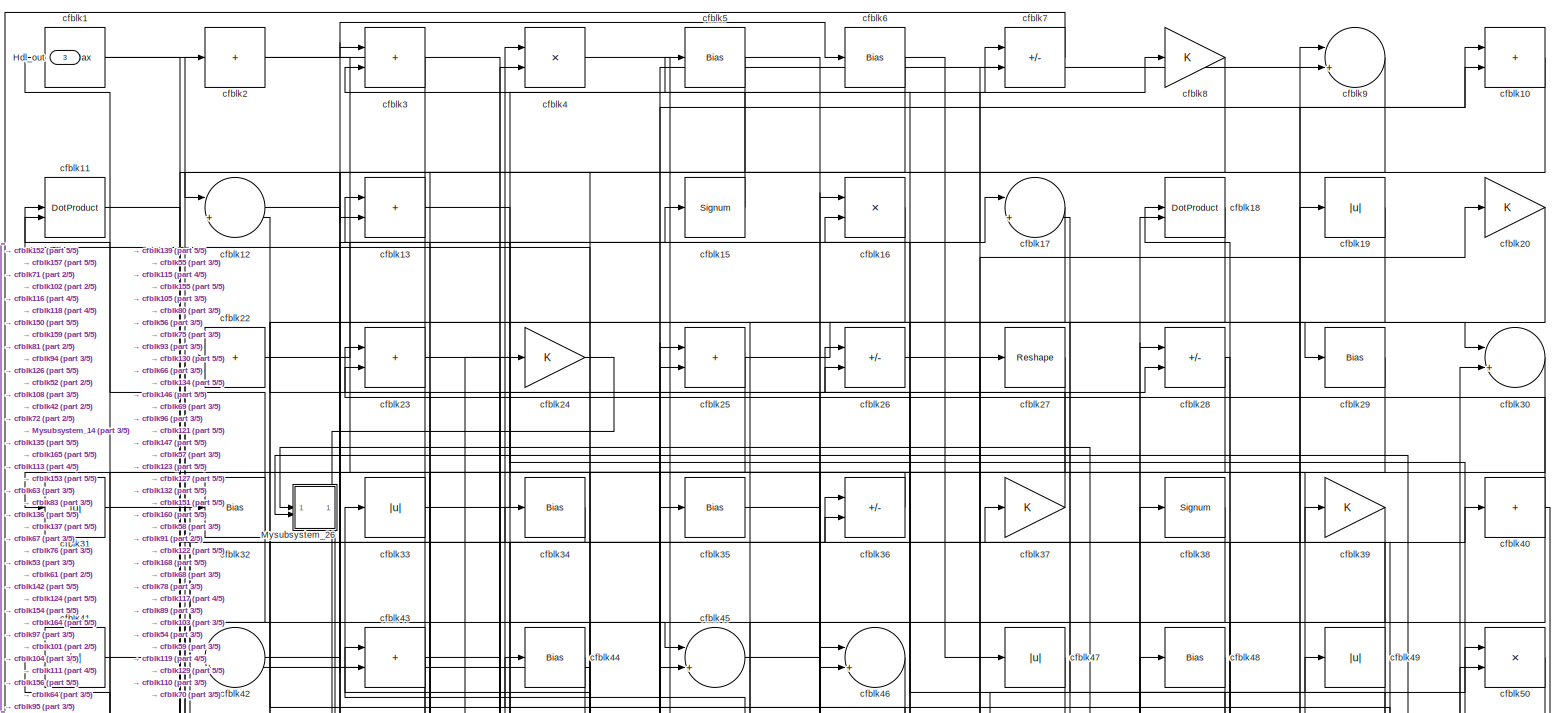
[diagram: root canvas - part 1/5, full width, top band]
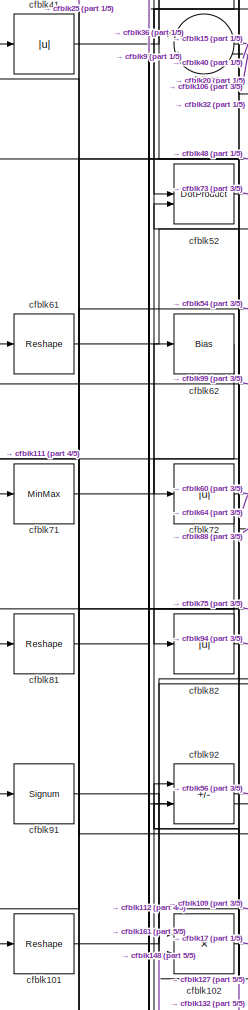
[diagram: root canvas - part 2/5, middle left region]
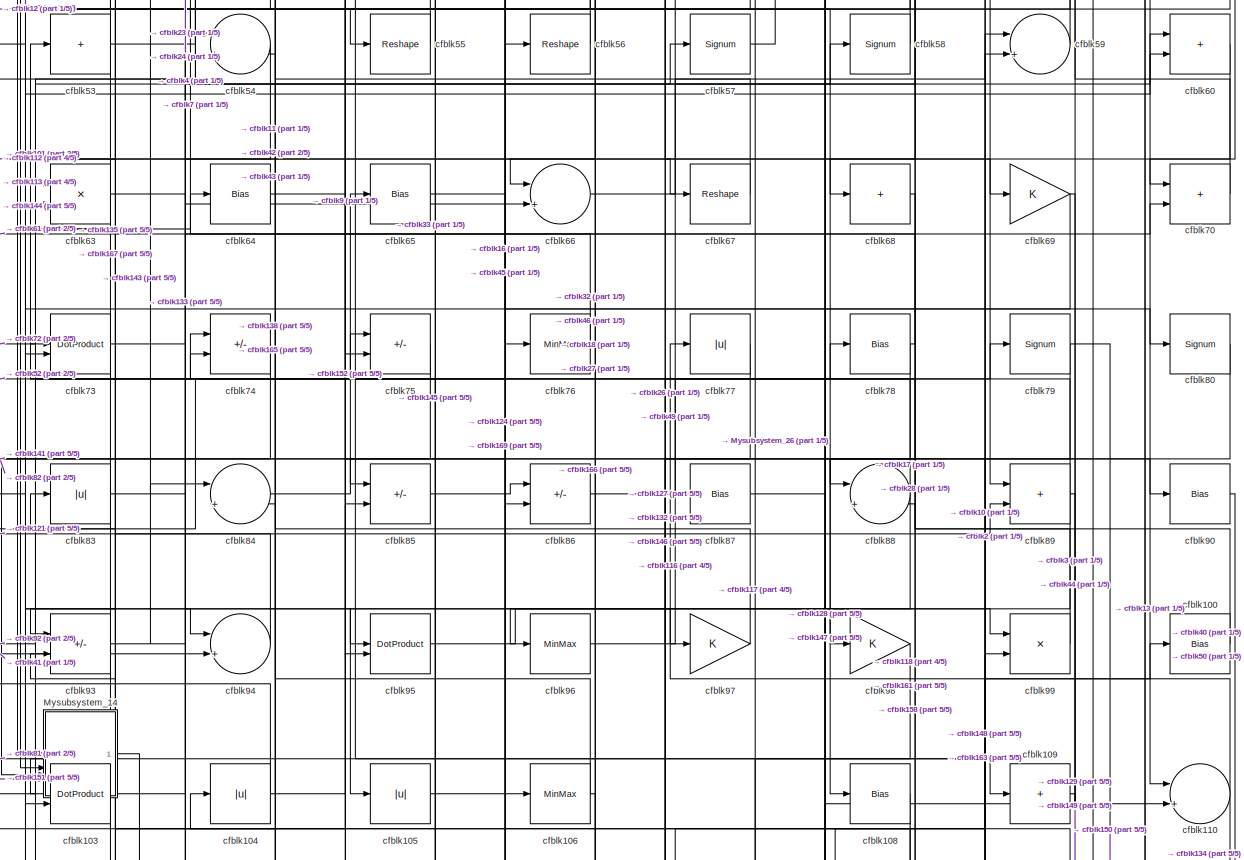
[diagram: root canvas - part 3/5, full width, middle band]
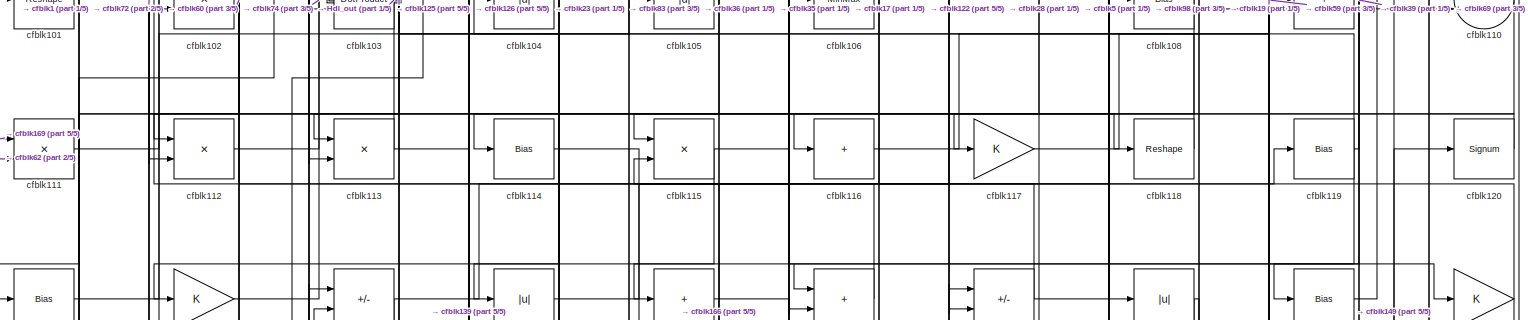
[diagram: root canvas - part 4/5, full width, bottom band]
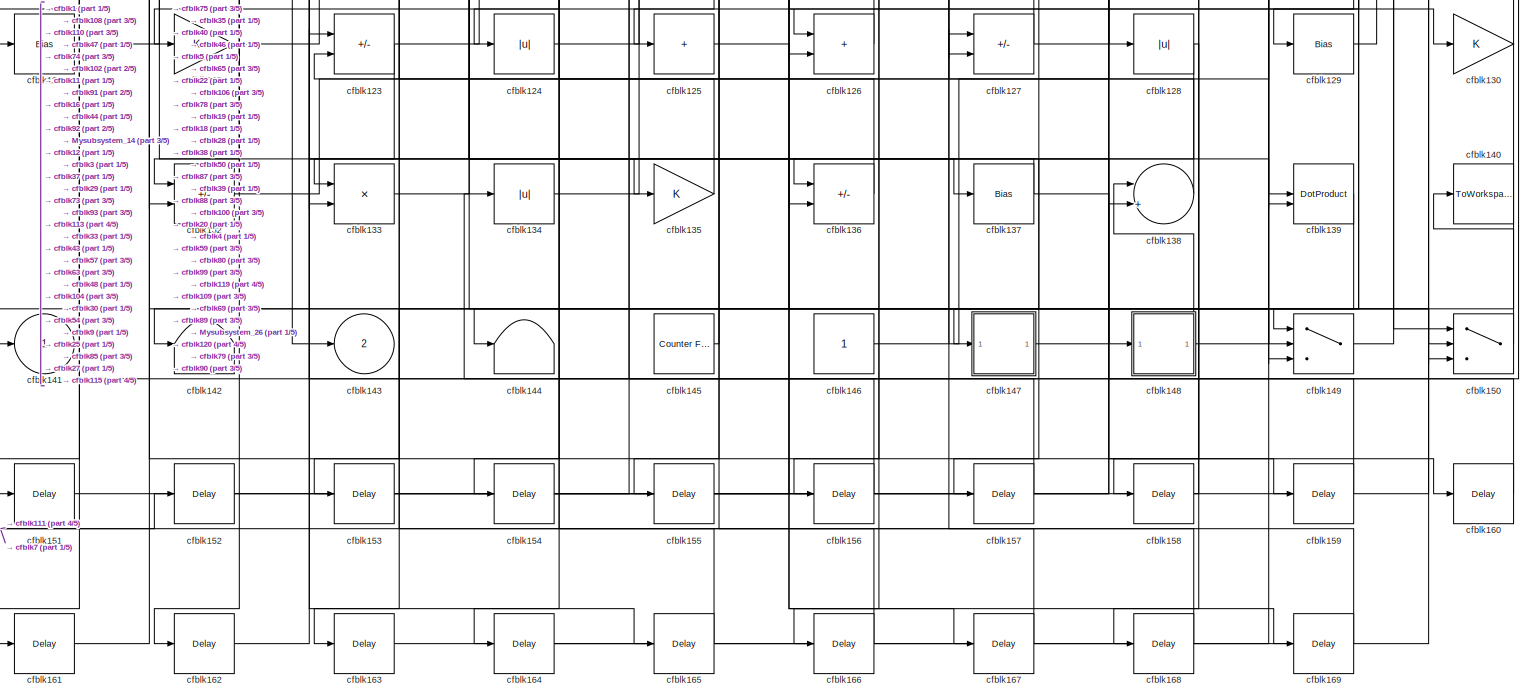
[diagram: root canvas - part 5/5, full width, bottom band]
MODEL slx_db6fb488fb43
KIND model
CONFIG AbsTol = auto
CONFIG EnableMultiTasking = off
CONFIG FixedStep = auto
CONFIG MaxStep = auto
CONFIG MinStep = auto
CONFIG RelTol = 1e-3
CONFIG SampleTimeConstraint = Unconstrained
CONFIG SolverName = VariableStepAuto
CONFIG StartTime = 0.0
CONFIG StopTime = 10.0
BLOCK [Outport] Hdl_out
  OutDataTypeStr = uint8
  Port = 3
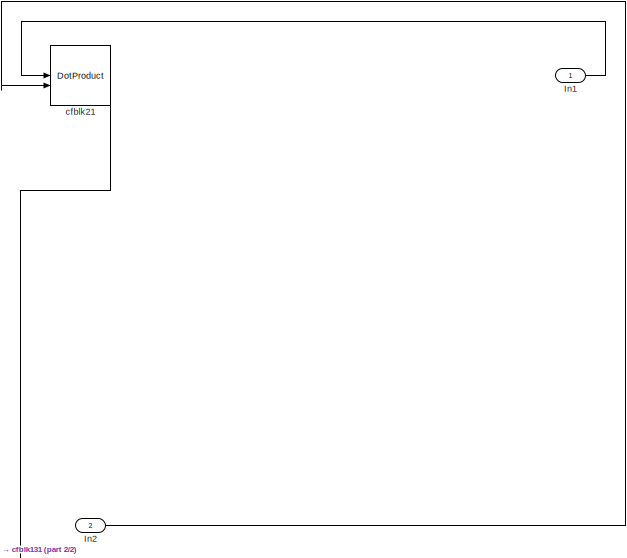
[diagram: Mysubsystem_14 - part 1/2, top left region]
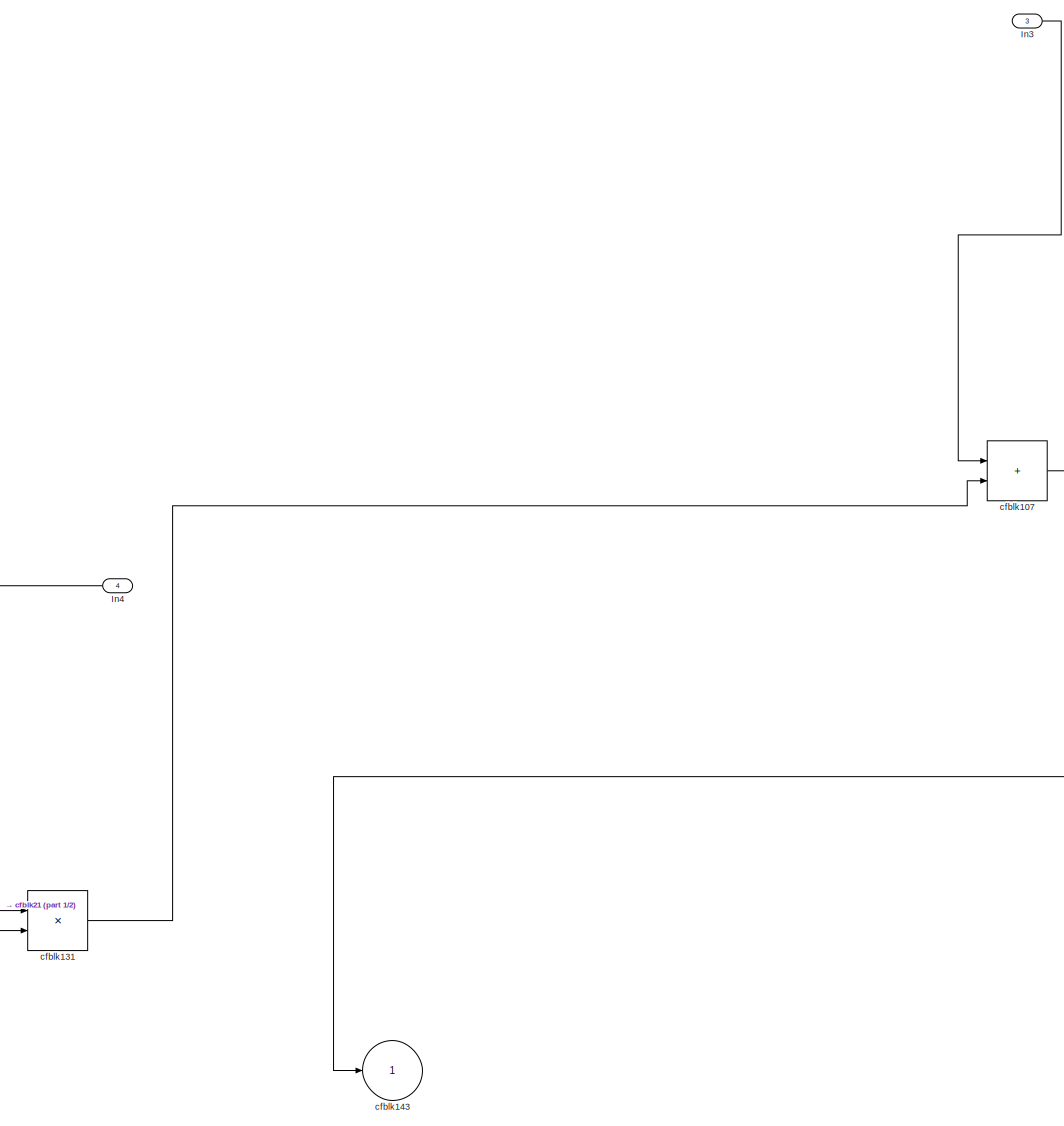
[diagram: Mysubsystem_14 - part 2/2, full width, bottom band]
BLOCK [SubSystem] Mysubsystem_14
  RTWFcnName = Mysubsystem_14
  RTWFcnNameOpts = User specified
  RTWFileNameOpts = Use function name
  RTWSystemCode = Reusable function
  TreatAsAtomicUnit = on
BLOCK [Inport] Mysubsystem_14/In1
BLOCK [Inport] Mysubsystem_14/In2
  Port = 2
BLOCK [Inport] Mysubsystem_14/In3
  Port = 3
BLOCK [Inport] Mysubsystem_14/In4
  Port = 4
BLOCK [Sum] Mysubsystem_14/cfblk107
  IconShape = rectangular
BLOCK [Product] Mysubsystem_14/cfblk131
  Inputs = */
  RndMeth = Zero
  SaturateOnIntegerOverflow = on
BLOCK [Outport] Mysubsystem_14/cfblk143
  VectorParamsAs1DForOutWhenUnconnected = off
BLOCK [DotProduct] Mysubsystem_14/cfblk21
  OutDataTypeStr = Inherit: Inherit via internal rule
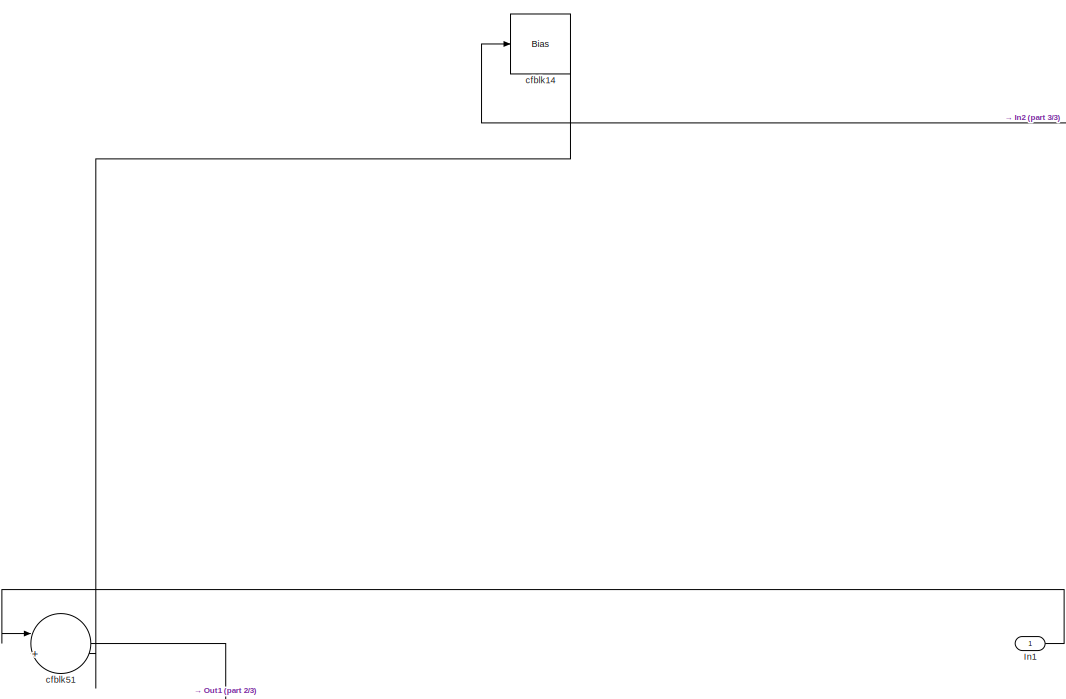
[diagram: Mysubsystem_26 - part 1/3, full width, top band]
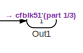
[diagram: Mysubsystem_26 - part 2/3, bottom left region]
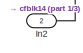
[diagram: Mysubsystem_26 - part 3/3, bottom right region]
BLOCK [SubSystem] Mysubsystem_26
  RTWFcnName = Mysubsystem_26
  RTWFcnNameOpts = User specified
  RTWFileNameOpts = Use function name
  RTWSystemCode = Reusable function
  TreatAsAtomicUnit = on
BLOCK [Inport] Mysubsystem_26/In1
BLOCK [Inport] Mysubsystem_26/In2
  Port = 2
BLOCK [Outport] Mysubsystem_26/Out1
BLOCK [Bias] Mysubsystem_26/cfblk14
  Bias = 0.0
  SaturateOnIntegerOverflow = off
BLOCK [Sum] Mysubsystem_26/cfblk51
  Inputs = |++
BLOCK [MinMax] cfblk1
  OutDataTypeStr = uint8
BLOCK [Sum] cfblk10
  IconShape = rectangular
  OutDataTypeStr = uint8
BLOCK [Bias] cfblk100
  Bias = 0.0
  SaturateOnIntegerOverflow = off
BLOCK [Reshape] cfblk101
BLOCK [Product] cfblk102
  Inputs = */
  OutDataTypeStr = uint8
  RndMeth = Zero
  SaturateOnIntegerOverflow = on
BLOCK [DotProduct] cfblk103
  OutDataTypeStr = uint8
BLOCK [Abs] cfblk104
  OutDataTypeStr = uint8
  SaturateOnIntegerOverflow = off
BLOCK [Abs] cfblk105
  OutDataTypeStr = uint8
  SaturateOnIntegerOverflow = off
BLOCK [MinMax] cfblk106
  OutDataTypeStr = uint8
BLOCK [Bias] cfblk108
  Bias = 0.0
  SaturateOnIntegerOverflow = off
BLOCK [Sum] cfblk109
  IconShape = rectangular
  Inputs = +
  OutDataTypeStr = uint8
BLOCK [DotProduct] cfblk11
  OutDataTypeStr = uint8
BLOCK [Sum] cfblk110
  Inputs = |++
  OutDataTypeStr = uint8
BLOCK [Product] cfblk111
  Inputs = */
  OutDataTypeStr = uint8
  RndMeth = Zero
  SaturateOnIntegerOverflow = on
BLOCK [Product] cfblk112
  Inputs = */
  OutDataTypeStr = uint8
  RndMeth = Zero
  SaturateOnIntegerOverflow = on
BLOCK [Product] cfblk113
  Inputs = */
  OutDataTypeStr = uint8
  RndMeth = Zero
  SaturateOnIntegerOverflow = on
BLOCK [Bias] cfblk114
  Bias = 0.0
  SaturateOnIntegerOverflow = off
BLOCK [Product] cfblk115
  Inputs = */
  OutDataTypeStr = uint8
  RndMeth = Zero
  SaturateOnIntegerOverflow = on
BLOCK [Sum] cfblk116
  IconShape = rectangular
  Inputs = +
  OutDataTypeStr = uint8
BLOCK [Gain] cfblk117
  OutDataTypeStr = uint8
BLOCK [Reshape] cfblk118
BLOCK [Bias] cfblk119
  Bias = 0.0
  SaturateOnIntegerOverflow = off
BLOCK [Sum] cfblk12
  Inputs = |++
  OutDataTypeStr = uint8
BLOCK [Signum] cfblk120
BLOCK [Bias] cfblk121
  Bias = 0.0
  SaturateOnIntegerOverflow = off
BLOCK [Gain] cfblk122
  OutDataTypeStr = uint8
BLOCK [Sum] cfblk123
  IconShape = rectangular
  Inputs = +-
  OutDataTypeStr = uint8
BLOCK [Abs] cfblk124
  OutDataTypeStr = uint8
  SaturateOnIntegerOverflow = off
BLOCK [Sum] cfblk125
  IconShape = rectangular
  Inputs = +
  OutDataTypeStr = uint8
BLOCK [Sum] cfblk126
  IconShape = rectangular
  OutDataTypeStr = uint8
BLOCK [Sum] cfblk127
  IconShape = rectangular
  Inputs = +-
  OutDataTypeStr = uint8
BLOCK [Abs] cfblk128
  OutDataTypeStr = uint8
  SaturateOnIntegerOverflow = off
BLOCK [Bias] cfblk129
  Bias = 0.0
  SaturateOnIntegerOverflow = off
BLOCK [Sum] cfblk13
  IconShape = rectangular
  OutDataTypeStr = uint8
BLOCK [Gain] cfblk130
  OutDataTypeStr = uint8
BLOCK [Sum] cfblk132
  IconShape = rectangular
  Inputs = +-
  OutDataTypeStr = uint8
BLOCK [Product] cfblk133
  Inputs = */
  OutDataTypeStr = uint8
  RndMeth = Zero
  SaturateOnIntegerOverflow = on
BLOCK [Abs] cfblk134
  OutDataTypeStr = uint8
  SaturateOnIntegerOverflow = off
BLOCK [Gain] cfblk135
  OutDataTypeStr = uint8
BLOCK [Sum] cfblk136
  IconShape = rectangular
  Inputs = +-
  OutDataTypeStr = uint8
BLOCK [Bias] cfblk137
  Bias = 0.0
  SaturateOnIntegerOverflow = off
BLOCK [Sum] cfblk138
  Inputs = |++
  OutDataTypeStr = uint8
BLOCK [DotProduct] cfblk139
  OutDataTypeStr = uint8
BLOCK [ToWorkspace] cfblk140
  MaxDataPoints = inf
  SampleTime = -1
  SaveFormat = Timeseries
  VariableName = simout
BLOCK [Outport] cfblk141
  OutDataTypeStr = uint8
  VectorParamsAs1DForOutWhenUnconnected = off
BLOCK [Terminator] cfblk142
BLOCK [Outport] cfblk143
  OutDataTypeStr = uint8
  Port = 2
  VectorParamsAs1DForOutWhenUnconnected = off
BLOCK [Terminator] cfblk144
BLOCK [Reference] cfblk145  REF=hdlsllib/Sources/Counter
Free-Running
  SourceBlock = hdlsllib/Sources/Counter\nFree-Running
  SourceType = Counter Free-Running
BLOCK [Constant] cfblk146
  OutDataTypeStr = uint8
  SampleTime = -1
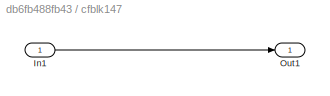
BLOCK [SubSystem] cfblk147
  LibrarySourceBlock = hdlsllib/Ports &\nSubsystems/Subsystem
BLOCK [Inport] cfblk147/In1
BLOCK [Outport] cfblk147/Out1
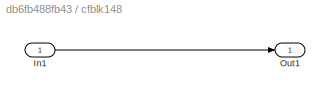
BLOCK [SubSystem] cfblk148
  LibrarySourceBlock = hdlsllib/Ports &\nSubsystems/Subsystem
BLOCK [Inport] cfblk148/In1
BLOCK [Outport] cfblk148/Out1
BLOCK [Switch] cfblk149
  InputSameDT = off
  OutDataTypeStr = uint8
  SaturateOnIntegerOverflow = off
BLOCK [Signum] cfblk15
BLOCK [Switch] cfblk150
  InputSameDT = off
  OutDataTypeStr = uint8
  SaturateOnIntegerOverflow = off
BLOCK [Delay] cfblk151
  InputPortMap = u0
  SampleTime = 1
BLOCK [Delay] cfblk152
  InputPortMap = u0
  SampleTime = 1
BLOCK [Delay] cfblk153
  InputPortMap = u0
  SampleTime = 1
BLOCK [Delay] cfblk154
  InputPortMap = u0
  SampleTime = 1
BLOCK [Delay] cfblk155
  InputPortMap = u0
  SampleTime = 1
BLOCK [Delay] cfblk156
  InputPortMap = u0
  SampleTime = 1
BLOCK [Delay] cfblk157
  InputPortMap = u0
  SampleTime = 1
BLOCK [Delay] cfblk158
  InputPortMap = u0
  SampleTime = 1
BLOCK [Delay] cfblk159
  InputPortMap = u0
  SampleTime = 1
BLOCK [Product] cfblk16
  Inputs = */
  OutDataTypeStr = uint8
  RndMeth = Zero
  SaturateOnIntegerOverflow = on
BLOCK [Delay] cfblk160
  InputPortMap = u0
  SampleTime = 1
BLOCK [Delay] cfblk161
  InputPortMap = u0
  SampleTime = 1
BLOCK [Delay] cfblk162
  InputPortMap = u0
  SampleTime = 1
BLOCK [Delay] cfblk163
  InputPortMap = u0
  SampleTime = 1
BLOCK [Delay] cfblk164
  InputPortMap = u0
  SampleTime = 1
BLOCK [Delay] cfblk165
  InputPortMap = u0
  SampleTime = 1
BLOCK [Delay] cfblk166
  InputPortMap = u0
  SampleTime = 1
BLOCK [Delay] cfblk167
  InputPortMap = u0
  SampleTime = 1
BLOCK [Delay] cfblk168
  InputPortMap = u0
  SampleTime = 1
BLOCK [Delay] cfblk169
  InputPortMap = u0
  SampleTime = 1
BLOCK [Sum] cfblk17
  Inputs = |++
  OutDataTypeStr = uint8
BLOCK [DotProduct] cfblk18
  OutDataTypeStr = uint8
BLOCK [Abs] cfblk19
  OutDataTypeStr = uint8
  SaturateOnIntegerOverflow = off
BLOCK [Sum] cfblk2
  IconShape = rectangular
  Inputs = +
  OutDataTypeStr = uint8
BLOCK [Gain] cfblk20
  OutDataTypeStr = uint8
BLOCK [Sum] cfblk22
  IconShape = rectangular
  Inputs = +
  OutDataTypeStr = uint8
BLOCK [Sum] cfblk23
  IconShape = rectangular
  OutDataTypeStr = uint8
BLOCK [Gain] cfblk24
  OutDataTypeStr = uint8
BLOCK [Sum] cfblk25
  IconShape = rectangular
  OutDataTypeStr = uint8
BLOCK [Sum] cfblk26
  IconShape = rectangular
  Inputs = +-
  OutDataTypeStr = uint8
BLOCK [Reshape] cfblk27
BLOCK [Sum] cfblk28
  IconShape = rectangular
  Inputs = +-
  OutDataTypeStr = uint8
BLOCK [Bias] cfblk29
  Bias = 0.0
  SaturateOnIntegerOverflow = off
BLOCK [Sum] cfblk3
  IconShape = rectangular
  OutDataTypeStr = uint8
BLOCK [Sum] cfblk30
  Inputs = |++
  OutDataTypeStr = uint8
BLOCK [Abs] cfblk31
  OutDataTypeStr = uint8
  SaturateOnIntegerOverflow = off
BLOCK [Bias] cfblk32
  Bias = 0.0
  SaturateOnIntegerOverflow = off
BLOCK [Abs] cfblk33
  OutDataTypeStr = uint8
  SaturateOnIntegerOverflow = off
BLOCK [Bias] cfblk34
  Bias = 0.0
  SaturateOnIntegerOverflow = off
BLOCK [Bias] cfblk35
  Bias = 0.0
  SaturateOnIntegerOverflow = off
BLOCK [Sum] cfblk36
  IconShape = rectangular
  Inputs = +-
  OutDataTypeStr = uint8
BLOCK [Gain] cfblk37
  OutDataTypeStr = uint8
BLOCK [Signum] cfblk38
BLOCK [Gain] cfblk39
  OutDataTypeStr = uint8
BLOCK [Product] cfblk4
  Inputs = */
  OutDataTypeStr = uint8
  RndMeth = Zero
  SaturateOnIntegerOverflow = on
BLOCK [Sum] cfblk40
  IconShape = rectangular
  Inputs = +
  OutDataTypeStr = uint8
BLOCK [Abs] cfblk41
  OutDataTypeStr = uint8
  SaturateOnIntegerOverflow = off
BLOCK [Sum] cfblk42
  Inputs = |++
  OutDataTypeStr = uint8
BLOCK [Sum] cfblk43
  IconShape = rectangular
  OutDataTypeStr = uint8
BLOCK [Bias] cfblk44
  Bias = 0.0
  SaturateOnIntegerOverflow = off
BLOCK [Sum] cfblk45
  Inputs = |++
  OutDataTypeStr = uint8
BLOCK [Sum] cfblk46
  Inputs = |++
  OutDataTypeStr = uint8
BLOCK [Abs] cfblk47
  OutDataTypeStr = uint8
  SaturateOnIntegerOverflow = off
BLOCK [Bias] cfblk48
  Bias = 0.0
  SaturateOnIntegerOverflow = off
BLOCK [Abs] cfblk49
  OutDataTypeStr = uint8
  SaturateOnIntegerOverflow = off
BLOCK [Bias] cfblk5
  Bias = 0.0
  SaturateOnIntegerOverflow = off
BLOCK [Product] cfblk50
  Inputs = */
  OutDataTypeStr = uint8
  RndMeth = Zero
  SaturateOnIntegerOverflow = on
BLOCK [DotProduct] cfblk52
  OutDataTypeStr = uint8
BLOCK [Sum] cfblk53
  IconShape = rectangular
  Inputs = +
  OutDataTypeStr = uint8
BLOCK [Sum] cfblk54
  Inputs = |++
  OutDataTypeStr = uint8
BLOCK [Reshape] cfblk55
BLOCK [Reshape] cfblk56
BLOCK [Signum] cfblk57
BLOCK [Signum] cfblk58
BLOCK [Sum] cfblk59
  Inputs = |++
  OutDataTypeStr = uint8
BLOCK [Bias] cfblk6
  Bias = 0.0
  SaturateOnIntegerOverflow = off
BLOCK [Sum] cfblk60
  IconShape = rectangular
  OutDataTypeStr = uint8
BLOCK [Reshape] cfblk61
BLOCK [Bias] cfblk62
  Bias = 0.0
  SaturateOnIntegerOverflow = off
BLOCK [Product] cfblk63
  Inputs = */
  OutDataTypeStr = uint8
  RndMeth = Zero
  SaturateOnIntegerOverflow = on
BLOCK [Bias] cfblk64
  Bias = 0.0
  SaturateOnIntegerOverflow = off
BLOCK [Bias] cfblk65
  Bias = 0.0
  SaturateOnIntegerOverflow = off
BLOCK [Sum] cfblk66
  Inputs = |++
  OutDataTypeStr = uint8
BLOCK [Reshape] cfblk67
BLOCK [Sum] cfblk68
  IconShape = rectangular
  Inputs = +
  OutDataTypeStr = uint8
BLOCK [Gain] cfblk69
  OutDataTypeStr = uint8
BLOCK [Sum] cfblk7
  IconShape = rectangular
  Inputs = +-
  OutDataTypeStr = uint8
BLOCK [Sum] cfblk70
  IconShape = rectangular
  OutDataTypeStr = uint8
BLOCK [MinMax] cfblk71
  OutDataTypeStr = uint8
BLOCK [Abs] cfblk72
  OutDataTypeStr = uint8
  SaturateOnIntegerOverflow = off
BLOCK [DotProduct] cfblk73
  OutDataTypeStr = uint8
BLOCK [Sum] cfblk74
  IconShape = rectangular
  Inputs = +-
  OutDataTypeStr = uint8
BLOCK [Sum] cfblk75
  IconShape = rectangular
  Inputs = +-
  OutDataTypeStr = uint8
BLOCK [MinMax] cfblk76
  OutDataTypeStr = uint8
BLOCK [Abs] cfblk77
  OutDataTypeStr = uint8
  SaturateOnIntegerOverflow = off
BLOCK [Bias] cfblk78
  Bias = 0.0
  SaturateOnIntegerOverflow = off
BLOCK [Signum] cfblk79
BLOCK [Gain] cfblk8
  OutDataTypeStr = uint8
BLOCK [Signum] cfblk80
BLOCK [Reshape] cfblk81
BLOCK [Abs] cfblk82
  OutDataTypeStr = uint8
  SaturateOnIntegerOverflow = off
BLOCK [Abs] cfblk83
  OutDataTypeStr = uint8
  SaturateOnIntegerOverflow = off
BLOCK [Sum] cfblk84
  Inputs = |++
  OutDataTypeStr = uint8
BLOCK [Sum] cfblk85
  IconShape = rectangular
  Inputs = +-
  OutDataTypeStr = uint8
BLOCK [Sum] cfblk86
  IconShape = rectangular
  Inputs = +-
  OutDataTypeStr = uint8
BLOCK [Bias] cfblk87
  Bias = 0.0
  SaturateOnIntegerOverflow = off
BLOCK [Sum] cfblk88
  Inputs = |++
  OutDataTypeStr = uint8
BLOCK [Sum] cfblk89
  IconShape = rectangular
  OutDataTypeStr = uint8
BLOCK [Sum] cfblk9
  Inputs = |++
  OutDataTypeStr = uint8
BLOCK [Bias] cfblk90
  Bias = 0.0
  SaturateOnIntegerOverflow = off
BLOCK [Signum] cfblk91
BLOCK [Sum] cfblk92
  IconShape = rectangular
  Inputs = +-
  OutDataTypeStr = uint8
BLOCK [Sum] cfblk93
  IconShape = rectangular
  Inputs = +-
  OutDataTypeStr = uint8
BLOCK [Sum] cfblk94
  Inputs = |++
  OutDataTypeStr = uint8
BLOCK [DotProduct] cfblk95
  OutDataTypeStr = uint8
BLOCK [MinMax] cfblk96
  OutDataTypeStr = uint8
BLOCK [Gain] cfblk97
  OutDataTypeStr = uint8
BLOCK [Gain] cfblk98
  OutDataTypeStr = uint8
BLOCK [Product] cfblk99
  Inputs = */
  OutDataTypeStr = uint8
  RndMeth = Zero
  SaturateOnIntegerOverflow = on
LINE Mysubsystem_14/In1:1 -> Mysubsystem_14/cfblk21:1
LINE Mysubsystem_14/In2:1 -> Mysubsystem_14/cfblk21:2
LINE Mysubsystem_14/In3:1 -> Mysubsystem_14/cfblk107:1
LINE Mysubsystem_14/In4:1 -> Mysubsystem_14/cfblk131:2
LINE Mysubsystem_14/cfblk107:1 -> Mysubsystem_14/cfblk143:1
LINE Mysubsystem_14/cfblk131:1 -> Mysubsystem_14/cfblk107:2
LINE Mysubsystem_14/cfblk21:1 -> Mysubsystem_14/cfblk131:1
LINE Mysubsystem_14:1 -> cfblk143:1
LINE Mysubsystem_26/In1:1 -> Mysubsystem_26/cfblk51:1
LINE Mysubsystem_26/In2:1 -> Mysubsystem_26/cfblk14:1
LINE Mysubsystem_26/cfblk14:1 -> Mysubsystem_26/cfblk51:2
LINE Mysubsystem_26/cfblk51:1 -> Mysubsystem_26/Out1:1
LINE Mysubsystem_26:1 -> Mysubsystem_14:2
LINE cfblk100:1 -> cfblk74:1
LINE cfblk101:1 -> cfblk25:2
LINE cfblk102:1 -> cfblk17:1
LINE cfblk103:1 -> cfblk58:1
NET cfblk104:1 -> cfblk41:1, cfblk84:2, cfblk9:2
LINE cfblk105:1 -> cfblk16:1
NET cfblk106:1 -> cfblk166:1, cfblk42:2
LINE cfblk108:1 -> cfblk161:1
LINE cfblk109:1 -> cfblk149:1
LINE cfblk10:1 -> cfblk13:2
NET cfblk110:1 -> Mysubsystem_14:4, cfblk151:1, cfblk77:1
LINE cfblk111:1 -> cfblk35:1
LINE cfblk112:1 -> cfblk74:2
NET cfblk113:1 -> Hdl_out:1, cfblk139:2, cfblk36:2
LINE cfblk114:1 -> cfblk119:1
NET cfblk115:1 -> cfblk122:1, cfblk28:2
LINE cfblk116:1 -> cfblk59:2
LINE cfblk117:1 -> cfblk19:1
LINE cfblk118:1 -> cfblk83:1
NET cfblk119:1 -> cfblk125:1, cfblk126:1, cfblk23:1, cfblk39:1
NET cfblk11:1 -> cfblk150:3, cfblk159:1
LINE cfblk120:1 -> cfblk114:1
LINE cfblk121:1 -> cfblk89:2
LINE cfblk122:1 -> cfblk37:1
NET cfblk123:1 -> cfblk133:2, cfblk48:1
LINE cfblk124:1 -> cfblk106:1
LINE cfblk125:1 -> cfblk167:1
LINE cfblk126:1 -> cfblk22:1
NET cfblk127:1 -> cfblk50:1, cfblk92:1
NET cfblk128:1 -> cfblk156:1, cfblk157:1, cfblk158:1
LINE cfblk129:1 -> Mysubsystem_26:2
NET cfblk12:1 -> cfblk135:1, cfblk30:1, cfblk95:1
NET cfblk130:1 -> cfblk163:1, cfblk16:2
NET cfblk132:1 -> cfblk38:1, cfblk87:1, cfblk92:2
LINE cfblk133:1 -> cfblk57:1
LINE cfblk134:1 -> cfblk27:1
LINE cfblk135:1 -> cfblk73:1
LINE cfblk136:1 -> cfblk123:2
NET cfblk137:1 -> cfblk133:1, cfblk160:1
LINE cfblk138:1 -> cfblk104:1
LINE cfblk139:1 -> cfblk162:1
LINE cfblk13:1 -> cfblk110:1
LINE cfblk145:1 -> cfblk75:1
NET cfblk146:1 -> cfblk20:1, cfblk59:1
LINE cfblk147/In1:1 -> cfblk147/Out1:1
LINE cfblk147:1 -> cfblk110:2
LINE cfblk148/In1:1 -> cfblk148/Out1:1
NET cfblk148:1 -> cfblk100:1, cfblk138:1
LINE cfblk149:1 -> cfblk120:1
LINE cfblk150:1 -> cfblk140:1
LINE cfblk151:1 -> cfblk18:2
LINE cfblk152:1 -> cfblk85:2
LINE cfblk153:1 -> cfblk50:2
LINE cfblk154:1 -> cfblk46:1
LINE cfblk155:1 -> cfblk138:2
LINE cfblk156:1 -> cfblk25:1
LINE cfblk157:1 -> cfblk1:1
LINE cfblk158:1 -> cfblk88:2
LINE cfblk159:1 -> cfblk3:1
LINE cfblk15:1 -> cfblk5:1
LINE cfblk160:1 -> cfblk28:1
LINE cfblk161:1 -> cfblk102:1
LINE cfblk162:1 -> cfblk123:1
LINE cfblk163:1 -> cfblk99:2
LINE cfblk164:1 -> cfblk30:2
LINE cfblk165:1 -> cfblk54:2
LINE cfblk166:1 -> cfblk115:2
LINE cfblk167:1 -> cfblk93:2
LINE cfblk168:1 -> cfblk127:1
LINE cfblk169:1 -> cfblk111:1
LINE cfblk16:1 -> cfblk132:1
LINE cfblk17:1 -> cfblk115:1
LINE cfblk18:1 -> cfblk66:1
LINE cfblk19:1 -> cfblk147:1
NET cfblk1:1 -> cfblk116:1, cfblk118:1, cfblk45:2
NET cfblk20:1 -> cfblk42:1, cfblk72:1
NET cfblk22:1 -> cfblk165:1, cfblk8:1
NET cfblk23:1 -> cfblk66:2, cfblk76:1
LINE cfblk24:1 -> Mysubsystem_14:1
NET cfblk25:1 -> cfblk29:1, cfblk71:1
LINE cfblk26:1 -> cfblk69:1
NET cfblk27:1 -> cfblk136:1, cfblk63:1
NET cfblk28:1 -> cfblk68:1, cfblk95:2
LINE cfblk29:1 -> cfblk153:1
NET cfblk2:1 -> cfblk6:1, cfblk89:1
LINE cfblk30:1 -> cfblk124:1
LINE cfblk31:1 -> cfblk108:1
NET cfblk32:1 -> cfblk11:2, cfblk52:1
NET cfblk33:1 -> cfblk136:2, cfblk7:1
LINE cfblk34:1 -> cfblk2:1
NET cfblk35:1 -> cfblk150:2, cfblk46:2
LINE cfblk36:1 -> cfblk31:1
LINE cfblk37:1 -> cfblk12:2
LINE cfblk38:1 -> cfblk155:1
LINE cfblk39:1 -> cfblk168:1
NET cfblk3:1 -> cfblk45:1, cfblk67:1
NET cfblk40:1 -> cfblk126:2, cfblk164:1, cfblk23:2, cfblk70:1
NET cfblk41:1 -> cfblk34:1, cfblk94:2
NET cfblk42:1 -> cfblk15:1, cfblk40:1
NET cfblk43:1 -> cfblk132:2, cfblk137:1
LINE cfblk44:1 -> cfblk142:1
LINE cfblk45:1 -> cfblk80:1
NET cfblk46:1 -> cfblk75:2, cfblk93:1
LINE cfblk47:1 -> cfblk121:1
LINE cfblk48:1 -> cfblk91:1
NET cfblk49:1 -> cfblk103:1, cfblk26:2, cfblk54:1
LINE cfblk4:1 -> cfblk139:1
LINE cfblk50:1 -> cfblk55:1
LINE cfblk52:1 -> cfblk73:2
LINE cfblk53:1 -> cfblk7:2
NET cfblk54:1 -> cfblk101:1, cfblk103:2
LINE cfblk55:1 -> cfblk33:1
LINE cfblk56:1 -> cfblk32:1
LINE cfblk57:1 -> Mysubsystem_26:1
LINE cfblk58:1 -> cfblk17:2
LINE cfblk59:1 -> cfblk3:2
NET cfblk5:1 -> cfblk113:1, cfblk130:1
LINE cfblk60:1 -> cfblk112:1
LINE cfblk61:1 -> cfblk9:1
LINE cfblk62:1 -> cfblk111:2
NET cfblk63:1 -> cfblk149:2, cfblk99:1
NET cfblk64:1 -> cfblk10:1, cfblk86:2
LINE cfblk65:1 -> cfblk169:1
NET cfblk66:1 -> cfblk10:2, cfblk60:1
LINE cfblk67:1 -> cfblk11:1
LINE cfblk68:1 -> cfblk88:1
NET cfblk69:1 -> cfblk113:2, cfblk144:1
NET cfblk6:1 -> cfblk12:1, cfblk47:1
LINE cfblk70:1 -> cfblk44:1
LINE cfblk71:1 -> cfblk62:1
NET cfblk72:1 -> cfblk112:2, cfblk60:2, cfblk64:1
LINE cfblk73:1 -> cfblk70:2
LINE cfblk74:1 -> cfblk141:1
LINE cfblk75:1 -> cfblk82:1
LINE cfblk76:1 -> cfblk4:1
LINE cfblk77:1 -> Mysubsystem_14:3
NET cfblk78:1 -> cfblk127:2, cfblk18:1
NET cfblk79:1 -> cfblk150:1, cfblk98:1
LINE cfblk7:1 -> cfblk152:1
NET cfblk80:1 -> cfblk149:3, cfblk85:1
NET cfblk81:1 -> cfblk109:1, cfblk36:1
NET cfblk82:1 -> cfblk81:1, cfblk94:1
NET cfblk83:1 -> cfblk24:1, cfblk4:2
LINE cfblk84:1 -> cfblk65:1
LINE cfblk85:1 -> cfblk86:1
NET cfblk86:1 -> cfblk78:1, cfblk90:1
LINE cfblk87:1 -> cfblk128:1
NET cfblk88:1 -> cfblk105:1, cfblk52:2
NET cfblk89:1 -> cfblk129:1, cfblk53:1, cfblk96:1
LINE cfblk8:1 -> cfblk43:2
LINE cfblk90:1 -> cfblk134:1
LINE cfblk91:1 -> cfblk148:1
LINE cfblk92:1 -> cfblk56:1
NET cfblk93:1 -> cfblk26:1, cfblk63:2, cfblk84:1
LINE cfblk94:1 -> cfblk13:1
LINE cfblk95:1 -> cfblk97:1
NET cfblk96:1 -> cfblk49:1, cfblk79:1
LINE cfblk97:1 -> cfblk43:1
LINE cfblk98:1 -> cfblk117:1
LINE cfblk99:1 -> cfblk61:1
NET cfblk9:1 -> cfblk102:2, cfblk154:1
note: NET lines group one-source signal fan-out (src -> all destinations, sorted); 1:1 wires keep LINE
